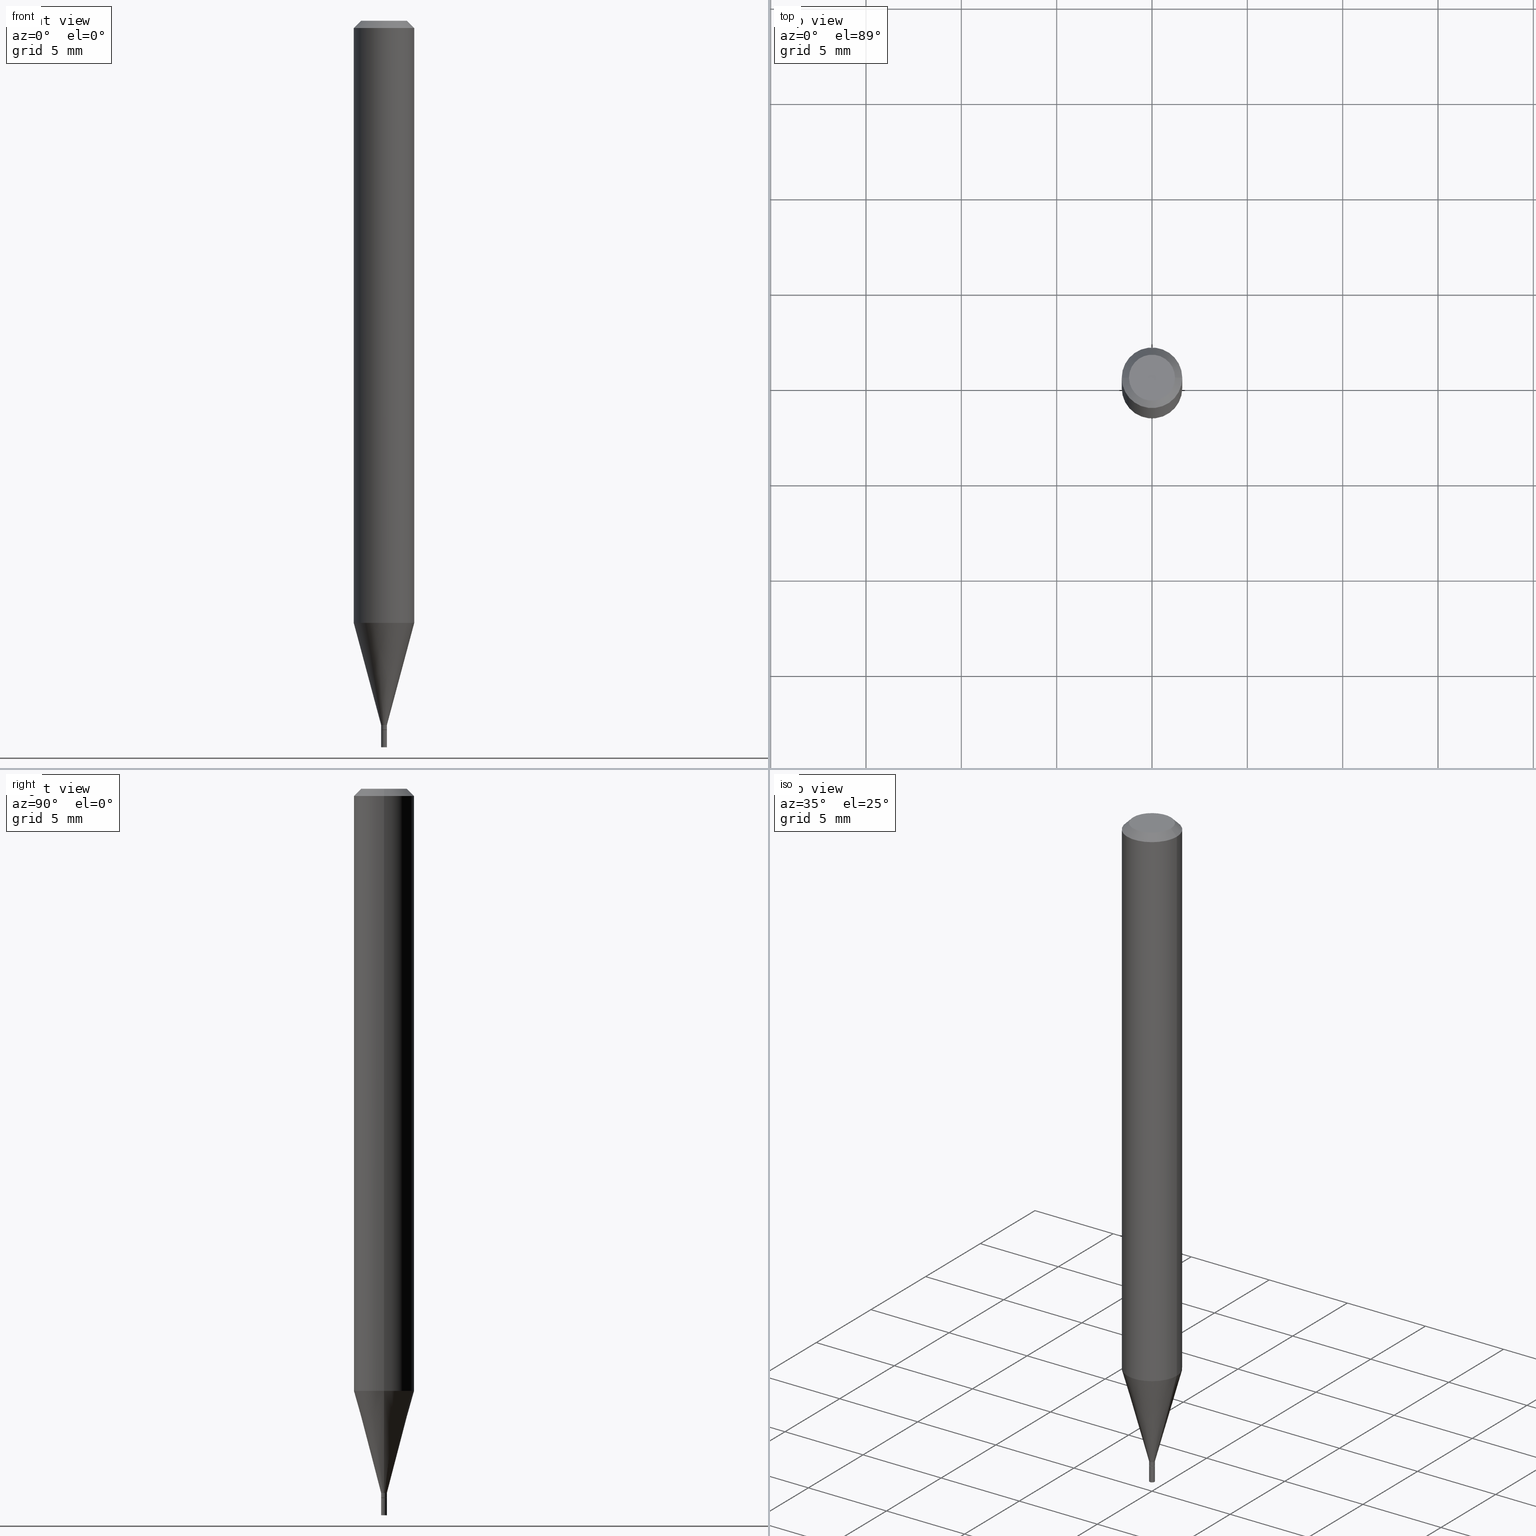
[diagram: canonical four-view strip — front | top / right | iso, engineering-drawing reading convention]
A machine part, canonical four-view strip (front | top / right | iso — engineering-drawing reading convention). The complete STEP part file that produces these views, byte-faithful:
ISO-10303-21;
HEADER;
FILE_DESCRIPTION (( 'STEP AP203' ),
    '1' );
FILE_NAME ('01163.STEP',
    '2024-03-19T23:32:27',
    ( '' ),
    ( '' ),
    'SwSTEP 2.0',
    'SolidWorks 2023',
    '' );
FILE_SCHEMA (( 'CONFIG_CONTROL_DESIGN' ));
ENDSEC;

DATA;
#1 = DIRECTION ( 'NONE',  ( -2.445468806185136597E-29, 3.491481338843145583E-15, 1.000000000000000000 ) ) ;
#2 = DIRECTION ( 'NONE',  ( -0.7071067811865642261, 7.493145998870414114E-15, 0.7071067811865309194 ) ) ;
#3 = COORDINATED_UNIVERSAL_TIME_OFFSET ( 5, 0, .BEHIND. ) ;
#4 = DIRECTION ( 'NONE',  ( -2.445468806185136597E-29, 3.491481338843145583E-15, 1.000000000000000000 ) ) ;
#5 = AXIS2_PLACEMENT_3D ( 'NONE', #80, #295, #219 ) ;
#6 = ADVANCED_FACE ( 'NONE', ( #401 ), #445, .T. ) ;
#7 = AXIS2_PLACEMENT_3D ( 'NONE', #51, #307, #187 ) ;
#8 = ORIENTED_EDGE ( 'NONE', *, *, #368, .T. ) ;
#9 = APPROVAL_DATE_TIME ( #48, #56 ) ;
#10 = FACE_OUTER_BOUND ( 'NONE', #165, .T. ) ;
#11 = ORIENTED_EDGE ( 'NONE', *, *, #319, .T. ) ;
#12 = DIRECTION ( 'NONE',  ( -2.445468806185136597E-29, 3.491481338843145583E-15, 1.000000000000000000 ) ) ;
#13 = AXIS2_PLACEMENT_3D ( 'NONE', #462, #466, #136 ) ;
#14 = CARTESIAN_POINT ( 'NONE',  ( 0.005499999999999999681, -5.149934974793639843E-15, -1.463999999999999968 ) ) ;
#15 = CARTESIAN_POINT ( 'NONE',  ( -0.005999999999999919460, -4.465144582235785416E-15, -1.454000000000000181 ) ) ;
#16 = LINE ( 'NONE', #303, #297 ) ;
#17 = CARTESIAN_POINT ( 'NONE',  ( 3.578943597851947764E-29, -5.109782939396944472E-15, -1.463500000000000023 ) ) ;
#18 = CARTESIAN_POINT ( 'NONE',  ( -0.005999999999999921195, 4.263256414560545121E-17, -2.951361054152904089E-31 ) ) ;
#19 = ORIENTED_EDGE ( 'NONE', *, *, #319, .F. ) ;
#20 = ADVANCED_FACE ( 'NONE', ( #192 ), #265, .F. ) ;
#21 = AXIS2_PLACEMENT_3D ( 'NONE', #30, #138, #393 ) ;
#22 = APPROVAL_ROLE ( '' ) ;
#23 = APPROVAL_PERSON_ORGANIZATION ( #421, #279, #22 ) ;
#24 = DIRECTION ( 'NONE',  ( 1.000000000000000000, -6.982962677686267499E-15, 4.852736867747366768E-29 ) ) ;
#25 = ORIENTED_EDGE ( 'NONE', *, *, #70, .T. ) ;
#26 = EDGE_LOOP ( 'NONE', ( #374, #11, #81, #237 ) ) ;
#27 = ADVANCED_FACE ( 'NONE', ( #372 ), #163, .T. ) ;
#28 = AXIS2_PLACEMENT_3D ( 'NONE', #141, #172, #32 ) ;
#29 = CC_DESIGN_APPROVAL ( #56, ( #137 ) ) ;
#30 = CARTESIAN_POINT ( 'NONE',  ( 3.578943597851947764E-29, -5.109782939396944472E-15, -1.463500000000000023 ) ) ;
#31 = CYLINDRICAL_SURFACE ( 'NONE', #28, 0.005999999999999921195 ) ;
#32 = DIRECTION ( 'NONE',  ( 1.000000000000000000, -6.982962677686265922E-15, 4.876176775795935793E-29 ) ) ;
#33 = PRODUCT_RELATED_PRODUCT_CATEGORY ( 'detail', '', ( #351 ) ) ;
#34 = CIRCLE ( 'NONE', #252, 0.006000000000000000125 ) ;
#35 = AXIS2_PLACEMENT_3D ( 'NONE', #253, #397, #76 ) ;
#36 = AXIS2_PLACEMENT_3D ( 'NONE', #369, #259, #43 ) ;
#37 = CYLINDRICAL_SURFACE ( 'NONE', #13, 0.006000000000000000125 ) ;
#38 = DIRECTION ( 'NONE',  ( -2.445468806185136597E-29, 3.491481338843145583E-15, 1.000000000000000000 ) ) ;
#39 = ADVANCED_FACE ( 'NONE', ( #145 ), #110, .T. ) ;
#40 = VERTEX_POINT ( 'NONE', #215 ) ;
#41 = AXIS2_PLACEMENT_3D ( 'NONE', #209, #72, #356 ) ;
#42 = CC_DESIGN_APPROVAL ( #166, ( #300 ) ) ;
#43 = DIRECTION ( 'NONE',  ( 1.000000000000000000, -6.982962677686270655E-15, 0.000000000000000000 ) ) ;
#44 = DIRECTION ( 'NONE',  ( -2.438088387897960049E-29, 3.491481338843145188E-15, 1.000000000000000000 ) ) ;
#45 = EDGE_CURVE ( 'NONE', #456, #132, #464, .T. ) ;
#46 = DIRECTION ( 'NONE',  ( -2.445468806185136597E-29, 3.491481338843145583E-15, 1.000000000000000000 ) ) ;
#47 = EDGE_LOOP ( 'NONE', ( #448, #457 ) ) ;
#48 = DATE_AND_TIME ( #329, #390 ) ;
#49 = ORIENTED_EDGE ( 'NONE', *, *, #349, .F. ) ;
#50 = VECTOR ( 'NONE', #361, 39.37007874015748143 ) ;
#51 = CARTESIAN_POINT ( 'NONE',  ( 0.000000000000000000, 0.000000000000000000, 0.000000000000000000 ) ) ;
#52 = LINE ( 'NONE', #94, #135 ) ;
#53 = ORIENTED_EDGE ( 'NONE', *, *, #306, .F. ) ;
#54 = DIRECTION ( 'NONE',  ( -2.445468806185136597E-29, 3.491481338843145583E-15, 1.000000000000000000 ) ) ;
#55 = CARTESIAN_POINT ( 'NONE',  ( 1.873992581615772204E-44, -2.675564747051046294E-30, -7.663122002930588880E-16 ) ) ;
#56 = APPROVAL ( #232, 'UNSPECIFIED' ) ;
#57 = ORIENTED_EDGE ( 'NONE', *, *, #285, .F. ) ;
#58 = CARTESIAN_POINT ( 'NONE',  ( 3.668203209277705088E-31, -5.237222008264718399E-17, -0.01499999999999999944 ) ) ;
#59 = ORIENTED_EDGE ( 'NONE', *, *, #426, .F. ) ;
#60 = CIRCLE ( 'NONE', #335, 0.006000000000000000125 ) ;
#61 = CALENDAR_DATE ( 2024, 19, 3 ) ;
#62 = APPROVAL_PERSON_ORGANIZATION ( #69, #166, #434 ) ;
#63 = ORIENTED_EDGE ( 'NONE', *, *, #124, .F. ) ;
#64 = PRODUCT_DEFINITION_SHAPE ( 'NONE', 'NONE',  #137 ) ;
#65 = ORIENTED_EDGE ( 'NONE', *, *, #158, .F. ) ;
#66 = PERSON_AND_ORGANIZATION_ROLE ( 'design_supplier' ) ;
#67 = AXIS2_PLACEMENT_3D ( 'NONE', #322, #171, #210 ) ;
#68 = DIRECTION ( 'NONE',  ( 1.000000000000000000, -6.982962677686266711E-15, 4.876176775795935793E-29 ) ) ;
#69 = PERSON_AND_ORGANIZATION ( #263, #117 ) ;
#70 = EDGE_CURVE ( 'NONE', #262, #456, #218, .T. ) ;
#71 = PLANE ( 'NONE',  #41 ) ;
#72 = DIRECTION ( 'NONE',  ( 2.438088387897960049E-29, -3.491481338843145188E-15, -1.000000000000000000 ) ) ;
#73 = VECTOR ( 'NONE', #130, 39.37007874015748143 ) ;
#74 = CYLINDRICAL_SURFACE ( 'NONE', #140, 0.06250000000000000000 ) ;
#75 = EDGE_CURVE ( 'NONE', #224, #132, #198, .T. ) ;
#76 = DIRECTION ( 'NONE',  ( 1.000000000000000000, -6.982962677686266711E-15, 4.876176775795935793E-29 ) ) ;
#77 = CARTESIAN_POINT ( 'NONE',  ( 3.668203209277704895E-29, -5.237222008264718177E-15, -1.500000000000000222 ) ) ;
#78 = EDGE_LOOP ( 'NONE', ( #420, #90, #101, #63 ) ) ;
#79 = DIRECTION ( 'NONE',  ( 1.000000000000000000, -6.982962677686265133E-15, 0.000000000000000000 ) ) ;
#80 = CARTESIAN_POINT ( 'NONE',  ( 0.000000000000000000, 0.000000000000000000, 0.000000000000000000 ) ) ;
#81 = ORIENTED_EDGE ( 'NONE', *, *, #349, .T. ) ;
#82 = CIRCLE ( 'NONE', #396, 0.06250000000000000000 ) ;
#83 = DIRECTION ( 'NONE',  ( 1.000000000000000000, -6.982962677686332186E-15, 0.000000000000000000 ) ) ;
#84 = ORIENTED_EDGE ( 'NONE', *, *, #45, .F. ) ;
#85 = AXIS2_PLACEMENT_3D ( 'NONE', #159, #332, #365 ) ;
#86 = MECHANICAL_CONTEXT ( 'NONE', #367, 'mechanical' ) ;
#87 = ORIENTED_EDGE ( 'NONE', *, *, #426, .T. ) ;
#88 = APPLICATION_PROTOCOL_DEFINITION ( 'international standard', 'config_control_design', 1994, #408 ) ;
#89 = DIRECTION ( 'NONE',  ( -2.445468806185136597E-29, 3.491481338843145583E-15, 1.000000000000000000 ) ) ;
#90 = ORIENTED_EDGE ( 'NONE', *, *, #285, .T. ) ;
#91 = VECTOR ( 'NONE', #281, 39.37007874015748854 ) ;
#92 = EDGE_CURVE ( 'NONE', #132, #344, #52, .T. ) ;
#93 = PERSON_AND_ORGANIZATION_ROLE ( 'design_owner' ) ;
#94 = CARTESIAN_POINT ( 'NONE',  ( -0.005999999999999919460, -5.033981302532329066E-15, -1.454000000000000181 ) ) ;
#95 = ORIENTED_EDGE ( 'NONE', *, *, #455, .T. ) ;
#96 = DIRECTION ( 'NONE',  ( -2.445468806185136597E-29, 3.491481338843145583E-15, 1.000000000000000000 ) ) ;
#97 = ORIENTED_EDGE ( 'NONE', *, *, #182, .F. ) ;
#98 = ORIENTED_EDGE ( 'NONE', *, *, #179, .F. ) ;
#99 = CIRCLE ( 'NONE', #438, 0.04749999999999999362 ) ;
#100 =( GEOMETRIC_REPRESENTATION_CONTEXT ( 3 ) GLOBAL_UNCERTAINTY_ASSIGNED_CONTEXT ( ( #366 ) ) GLOBAL_UNIT_ASSIGNED_CONTEXT ( ( #376, #269, #121 ) ) REPRESENTATION_CONTEXT ( 'NONE', 'WORKASPACE' ) );
#101 = ORIENTED_EDGE ( 'NONE', *, *, #260, .F. ) ;
#102 = EDGE_CURVE ( 'NONE', #294, #240, #34, .T. ) ;
#103 = DIRECTION ( 'NONE',  ( -2.445468806185136877E-29, 3.491481338843145188E-15, 1.000000000000000000 ) ) ;
#104 = CARTESIAN_POINT ( 'NONE',  ( 3.555711644193189020E-29, -5.076613866677933538E-15, -1.454000000000000181 ) ) ;
#105 = VECTOR ( 'NONE', #270, 39.37007874015748143 ) ;
#106 = EDGE_CURVE ( 'NONE', #256, #134, #395, .T. ) ;
#107 = DIRECTION ( 'NONE',  ( 2.445468806185136597E-29, -3.491481338843145583E-15, -1.000000000000000000 ) ) ;
#108 = SHAPE_DEFINITION_REPRESENTATION ( #64, #357 ) ;
#109 = CIRCLE ( 'NONE', #358, 0.006000000000000000125 ) ;
#110 = CYLINDRICAL_SURFACE ( 'NONE', #35, 0.06250000000000000000 ) ;
#111 = CARTESIAN_POINT ( 'NONE',  ( 3.555711644193189020E-29, -5.076613866677933538E-15, -1.454000000000000181 ) ) ;
#112 = CARTESIAN_POINT ( 'NONE',  ( 0.006000000000000000125, -5.279119784330836629E-15, -1.500000000000000222 ) ) ;
#113 = ORIENTED_EDGE ( 'NONE', *, *, #92, .F. ) ;
#114 = DIRECTION ( 'NONE',  ( 1.000000000000000000, -6.982962677686245411E-15, 0.000000000000000000 ) ) ;
#115 = LINE ( 'NONE', #342, #337 ) ;
#116 = CC_DESIGN_DATE_AND_TIME_ASSIGNMENT ( #142, #287, ( #300 ) ) ;
#117 = ORGANIZATION ( 'UNSPECIFIED', 'UNSPECIFIED', '' ) ;
#118 = APPLICATION_PROTOCOL_DEFINITION ( 'international standard', 'config_control_design', 1994, #367 ) ;
#119 = ORIENTED_EDGE ( 'NONE', *, *, #182, .T. ) ;
#120 = CARTESIAN_POINT ( 'NONE',  ( 0.006000000000000000125, -5.153426456132483639E-15, -1.463999999999999968 ) ) ;
#121 =( NAMED_UNIT ( * ) SI_UNIT ( $, .STERADIAN. ) SOLID_ANGLE_UNIT ( ) );
#122 = LINE ( 'NONE', #308, #73 ) ;
#123 = EDGE_LOOP ( 'NONE', ( #95, #146, #84, #311 ) ) ;
#124 = EDGE_CURVE ( 'NONE', #294, #386, #338, .T. ) ;
#125 = DIRECTION ( 'NONE',  ( -2.445468806185136597E-29, 3.491481338843145583E-15, 1.000000000000000000 ) ) ;
#126 = EDGE_LOOP ( 'NONE', ( #234, #87, #309, #258 ) ) ;
#127 = VECTOR ( 'NONE', #103, 39.37007874015748143 ) ;
#128 = LOCAL_TIME ( 19, 32, 27.00000000000000000, #436 ) ;
#129 = APPROVAL_DATE_TIME ( #245, #279 ) ;
#130 = DIRECTION ( 'NONE',  ( -2.445468806185136877E-29, 3.491481338843145188E-15, 1.000000000000000000 ) ) ;
#131 = ORIENTED_EDGE ( 'NONE', *, *, #158, .T. ) ;
#132 = VERTEX_POINT ( 'NONE', #15 ) ;
#133 = EDGE_CURVE ( 'NONE', #398, #40, #122, .T. ) ;
#134 = VERTEX_POINT ( 'NONE', #157 ) ;
#135 = VECTOR ( 'NONE', #200, 39.37007874015748854 ) ;
#136 = DIRECTION ( 'NONE',  ( 1.000000000000000000, -6.982962677686266711E-15, 4.876176775795935232E-29 ) ) ;
#137 = PRODUCT_DEFINITION ( 'UNKNOWN', '', #154, #203 ) ;
#138 = DIRECTION ( 'NONE',  ( -2.445468806185136597E-29, 3.491481338843145583E-15, 1.000000000000000000 ) ) ;
#139 = AXIS2_PLACEMENT_3D ( 'NONE', #222, #410, #226 ) ;
#140 = AXIS2_PLACEMENT_3D ( 'NONE', #465, #318, #68 ) ;
#141 = CARTESIAN_POINT ( 'NONE',  ( 0.000000000000000000, 0.000000000000000000, 0.000000000000000000 ) ) ;
#142 = DATE_AND_TIME ( #321, #169 ) ;
#143 = EDGE_CURVE ( 'NONE', #256, #40, #16, .T. ) ;
#144 = CARTESIAN_POINT ( 'NONE',  ( 0.005999999999999919460, -5.118511642744051201E-15, -1.454000000000000181 ) ) ;
#145 = FACE_OUTER_BOUND ( 'NONE', #126, .T. ) ;
#146 = ORIENTED_EDGE ( 'NONE', *, *, #75, .T. ) ;
#147 = EDGE_LOOP ( 'NONE', ( #8, #201, #272, #49 ) ) ;
#148 = ADVANCED_FACE ( 'NONE', ( #275 ), #304, .F. ) ;
#149 = PERSON_AND_ORGANIZATION_ROLE ( 'creator' ) ;
#150 = CYLINDRICAL_SURFACE ( 'NONE', #5, 0.006000000000000000125 ) ;
#151 = ORIENTED_EDGE ( 'NONE', *, *, #92, .T. ) ;
#152 = CYLINDRICAL_SURFACE ( 'NONE', #85, 0.005999999999999921195 ) ;
#153 = DIRECTION ( 'NONE',  ( 2.445468806185136597E-29, -3.491481338843145583E-15, -1.000000000000000000 ) ) ;
#154 = PRODUCT_DEFINITION_FORMATION_WITH_SPECIFIED_SOURCE ( 'ANY', '', #351, .NOT_KNOWN. ) ;
#155 = DIRECTION ( 'NONE',  ( 1.000000000000000000, -6.982962677686245411E-15, 0.000000000000000000 ) ) ;
#156 = COORDINATED_UNIVERSAL_TIME_OFFSET ( 5, 0, .BEHIND. ) ;
#157 = CARTESIAN_POINT ( 'NONE',  ( -0.04749999999999999362, 3.578768372314197194E-16, -7.663122002930613532E-16 ) ) ;
#158 = EDGE_CURVE ( 'NONE', #134, #451, #447, .T. ) ;
#159 = CARTESIAN_POINT ( 'NONE',  ( 0.000000000000000000, 0.000000000000000000, 0.000000000000000000 ) ) ;
#160 = CARTESIAN_POINT ( 'NONE',  ( 0.006000000000000000125, -4.189777606611760174E-17, 2.925706065477561230E-31 ) ) ;
#161 = DIRECTION ( 'NONE',  ( -2.445468806185136877E-29, 3.491481338843145188E-15, 1.000000000000000000 ) ) ;
#162 = EDGE_LOOP ( 'NONE', ( #277, #53 ) ) ;
#163 = CONICAL_SURFACE ( 'NONE', #444, 0.005999999999999919460, 0.2617993877991499629 ) ;
#164 = LOCAL_TIME ( 19, 32, 27.00000000000000000, #293 ) ;
#165 = EDGE_LOOP ( 'NONE', ( #57, #330, #167, #97 ) ) ;
#166 = APPROVAL ( #173, 'UNSPECIFIED' ) ;
#167 = ORIENTED_EDGE ( 'NONE', *, *, #124, .T. ) ;
#168 = ORIENTED_EDGE ( 'NONE', *, *, #360, .F. ) ;
#169 = LOCAL_TIME ( 19, 32, 27.00000000000000000, #3 ) ;
#170 = EDGE_CURVE ( 'NONE', #134, #256, #99, .T. ) ;
#171 = DIRECTION ( 'NONE',  ( -2.445468806185136597E-29, 3.491481338843145583E-15, 1.000000000000000000 ) ) ;
#172 = DIRECTION ( 'NONE',  ( -2.445468806185136597E-29, 3.491481338843145583E-15, 1.000000000000000000 ) ) ;
#173 = APPROVAL_STATUS ( 'not_yet_approved' ) ;
#174 = CARTESIAN_POINT ( 'NONE',  ( 3.668203209277705088E-31, -5.237222008264718399E-17, -0.01499999999999999944 ) ) ;
#175 = AXIS2_PLACEMENT_3D ( 'NONE', #324, #12, #155 ) ;
#176 = CLOSED_SHELL ( 'NONE', ( #266, #20, #355, #186 ) ) ;
#177 = FACE_OUTER_BOUND ( 'NONE', #305, .T. ) ;
#178 = CALENDAR_DATE ( 2024, 19, 3 ) ;
#179 = EDGE_CURVE ( 'NONE', #451, #40, #320, .T. ) ;
#180 = LINE ( 'NONE', #443, #50 ) ;
#181 = CARTESIAN_POINT ( 'NONE',  ( 3.668203209277705088E-31, -5.237222008264718399E-17, -0.01499999999999999944 ) ) ;
#182 = EDGE_CURVE ( 'NONE', #326, #386, #109, .T. ) ;
#183 = ORIENTED_EDGE ( 'NONE', *, *, #236, .T. ) ;
#184 = VECTOR ( 'NONE', #2, 39.37007874015748143 ) ;
#185 = AXIS2_PLACEMENT_3D ( 'NONE', #17, #412, #264 ) ;
#186 = ADVANCED_FACE ( 'NONE', ( #177 ), #71, .F. ) ;
#187 = DIRECTION ( 'NONE',  ( 1.000000000000000000, 0.000000000000000000, 0.000000000000000000 ) ) ;
#188 = EDGE_LOOP ( 'NONE', ( #348, #183, #25, #168 ) ) ;
#189 = DIRECTION ( 'NONE',  ( -2.445468806185136597E-29, 3.491481338843145583E-15, 1.000000000000000000 ) ) ;
#190 = FACE_OUTER_BOUND ( 'NONE', #123, .T. ) ;
#191 = EDGE_LOOP ( 'NONE', ( #370, #403, #131, #276 ) ) ;
#192 = FACE_OUTER_BOUND ( 'NONE', #162, .T. ) ;
#193 = CIRCLE ( 'NONE', #213, 0.006000000000000000125 ) ;
#194 = DIRECTION ( 'NONE',  ( 1.000000000000000000, -6.982962677686270655E-15, 0.000000000000000000 ) ) ;
#195 = CARTESIAN_POINT ( 'NONE',  ( 3.668203209277704895E-29, -5.237222008264718177E-15, -1.500000000000000222 ) ) ;
#196 = ORIENTED_EDGE ( 'NONE', *, *, #360, .T. ) ;
#197 = CARTESIAN_POINT ( 'NONE',  ( -0.06250000000000000000, -1.752295436085913706E-15, -0.01499999999999999944 ) ) ;
#198 = LINE ( 'NONE', #18, #105 ) ;
#199 = EDGE_LOOP ( 'NONE', ( #382, #19 ) ) ;
#200 = DIRECTION ( 'NONE',  ( -0.2588190451025212391, 5.211531920934549464E-15, 0.9659258262890679791 ) ) ;
#201 = ORIENTED_EDGE ( 'NONE', *, *, #389, .T. ) ;
#202 = CC_DESIGN_PERSON_AND_ORGANIZATION_ASSIGNMENT ( #208, #354, ( #300 ) ) ;
#203 = DESIGN_CONTEXT ( 'detailed design', #408, 'design' ) ;
#204 = EDGE_LOOP ( 'NONE', ( #414, #406, #384, #65 ) ) ;
#205 = PERSON_AND_ORGANIZATION_ROLE ( 'creator' ) ;
#206 = CALENDAR_DATE ( 2024, 19, 3 ) ;
#207 = AXIS2_PLACEMENT_3D ( 'NONE', #290, #334, #363 ) ;
#208 = PERSON_AND_ORGANIZATION ( #263, #117 ) ;
#209 = CARTESIAN_POINT ( 'NONE',  ( 4.189777606615339631E-17, 0.005999999999994887895, -1.463999999999999968 ) ) ;
#210 = DIRECTION ( 'NONE',  ( 1.000000000000000000, -6.982962677686245411E-15, 0.000000000000000000 ) ) ;
#211 = FACE_OUTER_BOUND ( 'NONE', #147, .T. ) ;
#212 = ADVANCED_FACE ( 'NONE', ( #211 ), #230, .T. ) ;
#213 = AXIS2_PLACEMENT_3D ( 'NONE', #359, #435, #317 ) ;
#214 = CARTESIAN_POINT ( 'NONE',  ( 0.005999999999999922062, -5.151680715463061346E-15, -1.463500000000000023 ) ) ;
#215 = CARTESIAN_POINT ( 'NONE',  ( 0.06250000000000000000, -4.888073874380388472E-16, -0.01499999999999999944 ) ) ;
#216 = CARTESIAN_POINT ( 'NONE',  ( -0.006000000000000000125, -5.131742780019935633E-15, -1.463999999999999968 ) ) ;
#217 = ADVANCED_FACE ( 'NONE', ( #286 ), #74, .T. ) ;
#218 = LINE ( 'NONE', #362, #261 ) ;
#219 = DIRECTION ( 'NONE',  ( 1.000000000000000000, -6.982962677686266711E-15, 4.876176775795935232E-29 ) ) ;
#220 = VERTEX_POINT ( 'NONE', #432 ) ;
#221 = CIRCLE ( 'NONE', #207, 0.005999999999999919460 ) ;
#222 = CARTESIAN_POINT ( 'NONE',  ( 3.584916967085606921E-29, -5.356492647442320375E-15, -1.500000000000000222 ) ) ;
#223 = CARTESIAN_POINT ( 'NONE',  ( -0.06250000000000000000, -3.896307861939242555E-15, -1.243139129372358598 ) ) ;
#224 = VERTEX_POINT ( 'NONE', #282 ) ;
#225 = ADVANCED_FACE ( 'NONE', ( #288 ), #31, .T. ) ;
#226 = DIRECTION ( 'NONE',  ( 1.000000000000000000, -6.982962677686265922E-15, 4.876176775795935793E-29 ) ) ;
#227 = CARTESIAN_POINT ( 'NONE',  ( 3.580166332255040005E-29, -5.111528680066365187E-15, -1.463999999999999968 ) ) ;
#228 =( LENGTH_UNIT ( ) NAMED_UNIT ( * ) SI_UNIT ( $, .METRE. ) );
#229 = DIRECTION ( 'NONE',  ( 1.000000000000000000, -6.982962677686266711E-15, 0.000000000000000000 ) ) ;
#230 = CONICAL_SURFACE ( 'NONE', #67, 0.005499999999999999681, 0.7853981633974718157 ) ;
#231 = ORIENTED_EDGE ( 'NONE', *, *, #446, .F. ) ;
#232 = APPROVAL_STATUS ( 'not_yet_approved' ) ;
#233 = DIRECTION ( 'NONE',  ( 0.7071067811865656694, -7.319954787623317576E-15, -0.7071067811865294761 ) ) ;
#234 = ORIENTED_EDGE ( 'NONE', *, *, #411, .T. ) ;
#235 = DIRECTION ( 'NONE',  ( -1.000000000000000000, 6.982962677686265922E-15, -4.876176775795935793E-29 ) ) ;
#236 = EDGE_CURVE ( 'NONE', #224, #262, #404, .T. ) ;
#237 = ORIENTED_EDGE ( 'NONE', *, *, #236, .F. ) ;
#238 = COORDINATED_UNIVERSAL_TIME_OFFSET ( 5, 0, .BEHIND. ) ;
#239 = AXIS2_PLACEMENT_3D ( 'NONE', #340, #343, #24 ) ;
#240 = VERTEX_POINT ( 'NONE', #353 ) ;
#241 = AXIS2_PLACEMENT_3D ( 'NONE', #111, #4, #79 ) ;
#242 = ORIENTED_EDGE ( 'NONE', *, *, #273, .F. ) ;
#243 = CC_DESIGN_DATE_AND_TIME_ASSIGNMENT ( #310, #458, ( #137 ) ) ;
#244 = FACE_OUTER_BOUND ( 'NONE', #199, .T. ) ;
#245 = DATE_AND_TIME ( #61, #430 ) ;
#246 = CARTESIAN_POINT ( 'NONE',  ( -0.006000000000000000125, 4.263256414560601204E-17, -2.951361054152943501E-31 ) ) ;
#247 = CONICAL_SURFACE ( 'NONE', #424, 0.005999999999999919460, 0.2617993877991499629 ) ;
#248 = CIRCLE ( 'NONE', #185, 0.005999999999999922062 ) ;
#249 = AXIS2_PLACEMENT_3D ( 'NONE', #333, #153, #301 ) ;
#250 = DIRECTION ( 'NONE',  ( -1.000000000000000000, 6.982962677686266711E-15, 0.000000000000000000 ) ) ;
#251 = ADVANCED_FACE ( 'NONE', ( #463 ), #247, .T. ) ;
#252 = AXIS2_PLACEMENT_3D ( 'NONE', #195, #96, #453 ) ;
#253 = CARTESIAN_POINT ( 'NONE',  ( 0.000000000000000000, 0.000000000000000000, 0.000000000000000000 ) ) ;
#254 = ADVANCED_FACE ( 'NONE', ( #283 ), #364, .T. ) ;
#255 = APPROVAL_DATE_TIME ( #328, #166 ) ;
#256 = VERTEX_POINT ( 'NONE', #392 ) ;
#257 = FACE_OUTER_BOUND ( 'NONE', #26, .T. ) ;
#258 = ORIENTED_EDGE ( 'NONE', *, *, #133, .F. ) ;
#259 = DIRECTION ( 'NONE',  ( -2.445468806185136597E-29, 3.491481338843145583E-15, 1.000000000000000000 ) ) ;
#260 = EDGE_CURVE ( 'NONE', #386, #326, #193, .T. ) ;
#261 = VECTOR ( 'NONE', #346, 39.37007874015748143 ) ;
#262 = VERTEX_POINT ( 'NONE', #214 ) ;
#263 = PERSON ( 'UNSPECIFIED', 'UNSPECIFIED', 'UNSPECIFIED', ('UNSPECIFIED'), ('UNSPECIFIED'), ('UNSPECIFIED') ) ;
#264 = DIRECTION ( 'NONE',  ( 1.000000000000000000, -6.982962677686261977E-15, 0.000000000000000000 ) ) ;
#265 = PLANE ( 'NONE',  #139 ) ;
#266 = ADVANCED_FACE ( 'NONE', ( #461 ), #37, .T. ) ;
#267 = CARTESIAN_POINT ( 'NONE',  ( -0.005499999999999999681, -5.072448829599560036E-15, -1.463999999999999968 ) ) ;
#268 = DIRECTION ( 'NONE',  ( -0.7071067811865656694, 2.468850131082446387E-15, -0.7071067811865294761 ) ) ;
#269 =( NAMED_UNIT ( * ) PLANE_ANGLE_UNIT ( ) SI_UNIT ( $, .RADIAN. ) );
#270 = DIRECTION ( 'NONE',  ( -2.445468806185136877E-29, 3.491481338843145188E-15, 1.000000000000000000 ) ) ;
#271 = CIRCLE ( 'NONE', #175, 0.005499999999999999681 ) ;
#272 = ORIENTED_EDGE ( 'NONE', *, *, #455, .F. ) ;
#273 = EDGE_CURVE ( 'NONE', #456, #398, #427, .T. ) ;
#274 = SECURITY_CLASSIFICATION_LEVEL ( 'unclassified' ) ;
#275 = FACE_OUTER_BOUND ( 'NONE', #47, .T. ) ;
#276 = ORIENTED_EDGE ( 'NONE', *, *, #179, .T. ) ;
#277 = ORIENTED_EDGE ( 'NONE', *, *, #102, .F. ) ;
#278 = AXIS2_PLACEMENT_3D ( 'NONE', #174, #107, #250 ) ;
#279 = APPROVAL ( #345, 'UNSPECIFIED' ) ;
#280 = ORIENTED_EDGE ( 'NONE', *, *, #446, .T. ) ;
#281 = DIRECTION ( 'NONE',  ( 0.2588190451025212391, 1.565188264969622362E-15, 0.9659258262890679791 ) ) ;
#282 = CARTESIAN_POINT ( 'NONE',  ( -0.005999999999999922062, -5.067150375251339212E-15, -1.463500000000000023 ) ) ;
#283 = FACE_OUTER_BOUND ( 'NONE', #204, .T. ) ;
#284 = AXIS2_PLACEMENT_3D ( 'NONE', #181, #54, #416 ) ;
#285 = EDGE_CURVE ( 'NONE', #240, #326, #425, .T. ) ;
#286 = FACE_OUTER_BOUND ( 'NONE', #350, .T. ) ;
#287 = DATE_TIME_ROLE ( 'classification_date' ) ;
#288 = FACE_OUTER_BOUND ( 'NONE', #188, .T. ) ;
#289 = EDGE_LOOP ( 'NONE', ( #113, #196, #312, #231 ) ) ;
#290 = CARTESIAN_POINT ( 'NONE',  ( 3.555711644193189020E-29, -5.076613866677933538E-15, -1.454000000000000181 ) ) ;
#291 = DIRECTION ( 'NONE',  ( 1.000000000000000000, -6.982962677686265922E-15, 4.876176775795935793E-29 ) ) ;
#292 = ADVANCED_FACE ( 'NONE', ( #244 ), #387, .F. ) ;
#293 = COORDINATED_UNIVERSAL_TIME_OFFSET ( 5, 0, .BEHIND. ) ;
#294 = VERTEX_POINT ( 'NONE', #112 ) ;
#295 = DIRECTION ( 'NONE',  ( -2.445468806185136597E-29, 3.491481338843145583E-15, 1.000000000000000000 ) ) ;
#296 = ORIENTED_EDGE ( 'NONE', *, *, #411, .F. ) ;
#297 = VECTOR ( 'NONE', #233, 39.37007874015748143 ) ;
#298 = CIRCLE ( 'NONE', #36, 0.06250000000000000000 ) ;
#299 = CC_DESIGN_PERSON_AND_ORGANIZATION_ASSIGNMENT ( #409, #93, ( #351 ) ) ;
#300 = SECURITY_CLASSIFICATION ( '', '', #274 ) ;
#301 = DIRECTION ( 'NONE',  ( -1.000000000000000000, 6.982962677686266711E-15, 0.000000000000000000 ) ) ;
#302 = CARTESIAN_POINT ( 'NONE',  ( 3.040057962628251805E-29, -4.340397071789305171E-15, -1.243139129372358598 ) ) ;
#303 = CARTESIAN_POINT ( 'NONE',  ( 0.06250000000000000000, -4.811533449433679005E-16, -0.01499999999999999944 ) ) ;
#304 = PLANE ( 'NONE',  #375 ) ;
#305 = EDGE_LOOP ( 'NONE', ( #379, #119 ) ) ;
#306 = EDGE_CURVE ( 'NONE', #240, #294, #60, .T. ) ;
#307 = DIRECTION ( 'NONE',  ( 0.000000000000000000, 0.000000000000000000, 1.000000000000000000 ) ) ;
#308 = CARTESIAN_POINT ( 'NONE',  ( 0.06250000000000000000, -4.364351673553916694E-16, 3.047610484872459871E-30 ) ) ;
#309 = ORIENTED_EDGE ( 'NONE', *, *, #400, .F. ) ;
#310 = DATE_AND_TIME ( #206, #164 ) ;
#311 = ORIENTED_EDGE ( 'NONE', *, *, #70, .F. ) ;
#312 = ORIENTED_EDGE ( 'NONE', *, *, #273, .T. ) ;
#313 = AXIS2_PLACEMENT_3D ( 'NONE', #331, #399, #402 ) ;
#314 = CC_DESIGN_APPROVAL ( #279, ( #154 ) ) ;
#315 = DIRECTION ( 'NONE',  ( 1.000000000000000000, -6.982962677686265133E-15, 0.000000000000000000 ) ) ;
#316 = PERSON_AND_ORGANIZATION ( #263, #117 ) ;
#317 = DIRECTION ( 'NONE',  ( 1.000000000000000000, -6.982962677686332186E-15, 0.000000000000000000 ) ) ;
#318 = DIRECTION ( 'NONE',  ( -2.445468806185136597E-29, 3.491481338843145583E-15, 1.000000000000000000 ) ) ;
#319 = EDGE_CURVE ( 'NONE', #220, #418, #385, .T. ) ;
#320 = CIRCLE ( 'NONE', #347, 0.06250000000000000000 ) ;
#321 = CALENDAR_DATE ( 2024, 19, 3 ) ;
#322 = CARTESIAN_POINT ( 'NONE',  ( 3.580166332255040005E-29, -5.111528680066365187E-15, -1.463999999999999968 ) ) ;
#323 = CC_DESIGN_PERSON_AND_ORGANIZATION_ASSIGNMENT ( #380, #149, ( #137 ) ) ;
#324 = CARTESIAN_POINT ( 'NONE',  ( 3.580166332255040005E-29, -5.111528680066365187E-15, -1.463999999999999968 ) ) ;
#325 = DIRECTION ( 'NONE',  ( 1.000000000000000000, -6.982962677686265133E-15, 0.000000000000000000 ) ) ;
#326 = VERTEX_POINT ( 'NONE', #216 ) ;
#327 = VECTOR ( 'NONE', #161, 39.37007874015748143 ) ;
#328 = DATE_AND_TIME ( #178, #128 ) ;
#329 = CALENDAR_DATE ( 2024, 19, 3 ) ;
#330 = ORIENTED_EDGE ( 'NONE', *, *, #306, .T. ) ;
#331 = CARTESIAN_POINT ( 'NONE',  ( 3.580166332255040005E-29, -5.111528680066365187E-15, -1.463999999999999968 ) ) ;
#332 = DIRECTION ( 'NONE',  ( -2.445468806185136597E-29, 3.491481338843145583E-15, 1.000000000000000000 ) ) ;
#333 = CARTESIAN_POINT ( 'NONE',  ( 3.668203209277705088E-31, -5.237222008264718399E-17, -0.01499999999999999944 ) ) ;
#334 = DIRECTION ( 'NONE',  ( -2.445468806185136597E-29, 3.491481338843145583E-15, 1.000000000000000000 ) ) ;
#335 = AXIS2_PLACEMENT_3D ( 'NONE', #77, #440, #83 ) ;
#336 = PERSON_AND_ORGANIZATION ( #263, #117 ) ;
#337 = VECTOR ( 'NONE', #339, 39.37007874015748143 ) ;
#338 = LINE ( 'NONE', #160, #327 ) ;
#339 = DIRECTION ( 'NONE',  ( -2.445468806185136877E-29, 3.491481338843145188E-15, 1.000000000000000000 ) ) ;
#340 = CARTESIAN_POINT ( 'NONE',  ( 1.873992581615772204E-44, -2.675564747051046294E-30, -7.663122002930588880E-16 ) ) ;
#341 = ADVANCED_FACE ( 'NONE', ( #257 ), #415, .T. ) ;
#342 = CARTESIAN_POINT ( 'NONE',  ( -0.06250000000000000000, 4.440892098500626162E-16, -3.074334431409316114E-30 ) ) ;
#343 = DIRECTION ( 'NONE',  ( -2.445468806185136597E-29, 3.491481338843145583E-15, 1.000000000000000000 ) ) ;
#344 = VERTEX_POINT ( 'NONE', #223 ) ;
#345 = APPROVAL_STATUS ( 'not_yet_approved' ) ;
#346 = DIRECTION ( 'NONE',  ( -2.445468806185136877E-29, 3.491481338843145188E-15, 1.000000000000000000 ) ) ;
#347 = AXIS2_PLACEMENT_3D ( 'NONE', #58, #89, #229 ) ;
#348 = ORIENTED_EDGE ( 'NONE', *, *, #75, .F. ) ;
#349 = EDGE_CURVE ( 'NONE', #418, #262, #180, .T. ) ;
#350 = EDGE_LOOP ( 'NONE', ( #59, #280, #454, #98 ) ) ;
#351 = PRODUCT ( '01163', '01163', '', ( #86 ) ) ;
#352 = AXIS2_PLACEMENT_3D ( 'NONE', #391, #44, #291 ) ;
#353 = CARTESIAN_POINT ( 'NONE',  ( -0.006000000000000000125, -5.131742780019935633E-15, -1.500000000000000222 ) ) ;
#354 = PERSON_AND_ORGANIZATION_ROLE ( 'classification_officer' ) ;
#355 = ADVANCED_FACE ( 'NONE', ( #10 ), #150, .T. ) ;
#356 = DIRECTION ( 'NONE',  ( -1.000000000000000000, 6.982962677686265922E-15, -4.876176775795935793E-29 ) ) ;
#357 = ADVANCED_BREP_SHAPE_REPRESENTATION ( '01163', ( #431, #433, #7 ), #100 ) ;
#358 = AXIS2_PLACEMENT_3D ( 'NONE', #450, #125, #378 ) ;
#359 = CARTESIAN_POINT ( 'NONE',  ( 3.580166332255040005E-29, -5.111528680066365187E-15, -1.463999999999999968 ) ) ;
#360 = EDGE_CURVE ( 'NONE', #132, #456, #221, .T. ) ;
#361 = DIRECTION ( 'NONE',  ( 0.7071067811865642261, -2.468850131082431399E-15, 0.7071067811865309194 ) ) ;
#362 = CARTESIAN_POINT ( 'NONE',  ( 0.005999999999999921195, -4.189777606611704707E-17, 2.925706065477523133E-31 ) ) ;
#363 = DIRECTION ( 'NONE',  ( 1.000000000000000000, -6.982962677686265133E-15, 0.000000000000000000 ) ) ;
#364 = CONICAL_SURFACE ( 'NONE', #278, 0.06250000000000000000, 0.7853981633974739252 ) ;
#365 = DIRECTION ( 'NONE',  ( 1.000000000000000000, -6.982962677686265922E-15, 4.876176775795935793E-29 ) ) ;
#366 = UNCERTAINTY_MEASURE_WITH_UNIT (LENGTH_MEASURE( 1.000000000000000082E-05 ), #376, 'distance_accuracy_value', 'NONE');
#367 = APPLICATION_CONTEXT ( 'configuration controlled 3d designs of mechanical parts and assemblies' ) ;
#368 = EDGE_CURVE ( 'NONE', #418, #220, #271, .T. ) ;
#369 = CARTESIAN_POINT ( 'NONE',  ( 3.040057962628251805E-29, -4.340397071789305171E-15, -1.243139129372358598 ) ) ;
#370 = ORIENTED_EDGE ( 'NONE', *, *, #143, .F. ) ;
#371 = APPROVAL_ROLE ( '' ) ;
#372 = FACE_OUTER_BOUND ( 'NONE', #289, .T. ) ;
#373 = LINE ( 'NONE', #267, #184 ) ;
#374 = ORIENTED_EDGE ( 'NONE', *, *, #389, .F. ) ;
#375 = AXIS2_PLACEMENT_3D ( 'NONE', #417, #419, #235 ) ;
#376 =( CONVERSION_BASED_UNIT ( 'INCH', #449 ) LENGTH_UNIT ( ) NAMED_UNIT ( #407 ) );
#377 = APPROVAL_PERSON_ORGANIZATION ( #336, #56, #371 ) ;
#378 = DIRECTION ( 'NONE',  ( 1.000000000000000000, -6.982962677686332186E-15, 0.000000000000000000 ) ) ;
#379 = ORIENTED_EDGE ( 'NONE', *, *, #260, .T. ) ;
#380 = PERSON_AND_ORGANIZATION ( #263, #117 ) ;
#381 = CARTESIAN_POINT ( 'NONE',  ( -0.06250000000000000000, 3.840629472727444916E-16, -0.01499999999999999944 ) ) ;
#382 = ORIENTED_EDGE ( 'NONE', *, *, #368, .F. ) ;
#383 = DIRECTION ( 'NONE',  ( -2.445468806185136597E-29, 3.491481338843145583E-15, 1.000000000000000000 ) ) ;
#384 = ORIENTED_EDGE ( 'NONE', *, *, #400, .T. ) ;
#385 = CIRCLE ( 'NONE', #459, 0.005499999999999999681 ) ;
#386 = VERTEX_POINT ( 'NONE', #120 ) ;
#387 = PLANE ( 'NONE',  #352 ) ;
#388 = PERSON_AND_ORGANIZATION ( #263, #117 ) ;
#389 = EDGE_CURVE ( 'NONE', #220, #224, #373, .T. ) ;
#390 = LOCAL_TIME ( 19, 32, 27.00000000000000000, #156 ) ;
#391 = CARTESIAN_POINT ( 'NONE',  ( 3.580166332255040005E-29, -5.111528680066365187E-15, -1.463999999999999968 ) ) ;
#392 = CARTESIAN_POINT ( 'NONE',  ( 0.04749999999999999362, -4.035134999187591935E-16, -7.663122002930563242E-16 ) ) ;
#393 = DIRECTION ( 'NONE',  ( 1.000000000000000000, -6.982962677686261977E-15, 0.000000000000000000 ) ) ;
#394 = CARTESIAN_POINT ( 'NONE',  ( 0.06250000000000000000, -4.776832239144696052E-15, -1.243139129372358598 ) ) ;
#395 = CIRCLE ( 'NONE', #239, 0.04749999999999999362 ) ;
#396 = AXIS2_PLACEMENT_3D ( 'NONE', #302, #46, #194 ) ;
#397 = DIRECTION ( 'NONE',  ( -2.445468806185136597E-29, 3.491481338843145583E-15, 1.000000000000000000 ) ) ;
#398 = VERTEX_POINT ( 'NONE', #394 ) ;
#399 = DIRECTION ( 'NONE',  ( -2.445468806185136597E-29, 3.491481338843145583E-15, 1.000000000000000000 ) ) ;
#400 = EDGE_CURVE ( 'NONE', #40, #451, #452, .T. ) ;
#401 = FACE_OUTER_BOUND ( 'NONE', #191, .T. ) ;
#402 = DIRECTION ( 'NONE',  ( 1.000000000000000000, -6.982962677686245411E-15, 0.000000000000000000 ) ) ;
#403 = ORIENTED_EDGE ( 'NONE', *, *, #170, .F. ) ;
#404 = CIRCLE ( 'NONE', #21, 0.005999999999999922062 ) ;
#405 = CC_DESIGN_SECURITY_CLASSIFICATION ( #300, ( #154 ) ) ;
#406 = ORIENTED_EDGE ( 'NONE', *, *, #143, .T. ) ;
#407 = DIMENSIONAL_EXPONENTS ( 1.000000000000000000, 0.000000000000000000, 0.000000000000000000, 0.000000000000000000, 0.000000000000000000, 0.000000000000000000, 0.000000000000000000 ) ;
#408 = APPLICATION_CONTEXT ( 'configuration controlled 3d designs of mechanical parts and assemblies' ) ;
#409 = PERSON_AND_ORGANIZATION ( #263, #117 ) ;
#410 = DIRECTION ( 'NONE',  ( -2.438088387897960049E-29, 3.491481338843145188E-15, 1.000000000000000000 ) ) ;
#411 = EDGE_CURVE ( 'NONE', #398, #344, #82, .T. ) ;
#412 = DIRECTION ( 'NONE',  ( -2.445468806185136597E-29, 3.491481338843145583E-15, 1.000000000000000000 ) ) ;
#413 = DIRECTION ( 'NONE',  ( 1.000000000000000000, -6.982962677686267499E-15, 4.852736867747366768E-29 ) ) ;
#414 = ORIENTED_EDGE ( 'NONE', *, *, #106, .F. ) ;
#415 = CONICAL_SURFACE ( 'NONE', #313, 0.005499999999999999681, 0.7853981633974718157 ) ;
#416 = DIRECTION ( 'NONE',  ( 1.000000000000000000, -6.982962677686266711E-15, 0.000000000000000000 ) ) ;
#417 = CARTESIAN_POINT ( 'NONE',  ( 3.316907271900976096E-16, 0.04749999999999999362, -5.490014637415788897E-16 ) ) ;
#418 = VERTEX_POINT ( 'NONE', #14 ) ;
#419 = DIRECTION ( 'NONE',  ( 2.438088387897960049E-29, -3.491481338843145188E-15, -1.000000000000000000 ) ) ;
#420 = ORIENTED_EDGE ( 'NONE', *, *, #102, .T. ) ;
#421 = PERSON_AND_ORGANIZATION ( #263, #117 ) ;
#422 = ADVANCED_FACE ( 'NONE', ( #190 ), #152, .T. ) ;
#423 = ORIENTED_EDGE ( 'NONE', *, *, #45, .T. ) ;
#424 = AXIS2_PLACEMENT_3D ( 'NONE', #104, #38, #315 ) ;
#425 = LINE ( 'NONE', #246, #127 ) ;
#426 = EDGE_CURVE ( 'NONE', #344, #451, #115, .T. ) ;
#427 = LINE ( 'NONE', #144, #91 ) ;
#428 = CLOSED_SHELL ( 'NONE', ( #422, #212, #254, #39, #251, #27, #217, #6, #148, #292, #341, #225 ) ) ;
#429 = VECTOR ( 'NONE', #268, 39.37007874015748143 ) ;
#430 = LOCAL_TIME ( 19, 32, 27.00000000000000000, #238 ) ;
#431 = MANIFOLD_SOLID_BREP ( 'Body-Move/Copy2[1]', #176 ) ;
#432 = CARTESIAN_POINT ( 'NONE',  ( -0.005499999999999999681, -5.069799602425448835E-15, -1.463999999999999968 ) ) ;
#433 = MANIFOLD_SOLID_BREP ( 'Body-Move/Copy2[2]', #428 ) ;
#434 = APPROVAL_ROLE ( '' ) ;
#435 = DIRECTION ( 'NONE',  ( -2.445468806185136597E-29, 3.491481338843145583E-15, 1.000000000000000000 ) ) ;
#436 = COORDINATED_UNIVERSAL_TIME_OFFSET ( 5, 0, .BEHIND. ) ;
#437 = CARTESIAN_POINT ( 'NONE',  ( 3.555711644193189020E-29, -5.076613866677933538E-15, -1.454000000000000181 ) ) ;
#438 = AXIS2_PLACEMENT_3D ( 'NONE', #55, #383, #413 ) ;
#439 = EDGE_LOOP ( 'NONE', ( #423, #151, #296, #242 ) ) ;
#440 = DIRECTION ( 'NONE',  ( -2.445468806185136597E-29, 3.491481338843145583E-15, 1.000000000000000000 ) ) ;
#441 = CC_DESIGN_PERSON_AND_ORGANIZATION_ASSIGNMENT ( #388, #66, ( #154 ) ) ;
#442 = CARTESIAN_POINT ( 'NONE',  ( 0.005999999999999919460, -5.118511642744051201E-15, -1.454000000000000181 ) ) ;
#443 = CARTESIAN_POINT ( 'NONE',  ( 0.005499999999999999681, -5.149934974793639843E-15, -1.463999999999999968 ) ) ;
#444 = AXIS2_PLACEMENT_3D ( 'NONE', #437, #1, #325 ) ;
#445 = CONICAL_SURFACE ( 'NONE', #249, 0.06250000000000000000, 0.7853981633974739252 ) ;
#446 = EDGE_CURVE ( 'NONE', #344, #398, #298, .T. ) ;
#447 = LINE ( 'NONE', #381, #429 ) ;
#448 = ORIENTED_EDGE ( 'NONE', *, *, #170, .T. ) ;
#449 = LENGTH_MEASURE_WITH_UNIT ( LENGTH_MEASURE( 0.02539999999999999897 ), #228 );
#450 = CARTESIAN_POINT ( 'NONE',  ( 3.580166332255040005E-29, -5.111528680066365187E-15, -1.463999999999999968 ) ) ;
#451 = VERTEX_POINT ( 'NONE', #197 ) ;
#452 = CIRCLE ( 'NONE', #284, 0.06250000000000000000 ) ;
#453 = DIRECTION ( 'NONE',  ( 1.000000000000000000, -6.982962677686332186E-15, 0.000000000000000000 ) ) ;
#454 = ORIENTED_EDGE ( 'NONE', *, *, #133, .T. ) ;
#455 = EDGE_CURVE ( 'NONE', #262, #224, #248, .T. ) ;
#456 = VERTEX_POINT ( 'NONE', #442 ) ;
#457 = ORIENTED_EDGE ( 'NONE', *, *, #106, .T. ) ;
#458 = DATE_TIME_ROLE ( 'creation_date' ) ;
#459 = AXIS2_PLACEMENT_3D ( 'NONE', #227, #189, #114 ) ;
#460 = CC_DESIGN_PERSON_AND_ORGANIZATION_ASSIGNMENT ( #316, #205, ( #154 ) ) ;
#461 = FACE_OUTER_BOUND ( 'NONE', #78, .T. ) ;
#462 = CARTESIAN_POINT ( 'NONE',  ( 0.000000000000000000, 0.000000000000000000, 0.000000000000000000 ) ) ;
#463 = FACE_OUTER_BOUND ( 'NONE', #439, .T. ) ;
#464 = CIRCLE ( 'NONE', #241, 0.005999999999999919460 ) ;
#465 = CARTESIAN_POINT ( 'NONE',  ( 0.000000000000000000, 0.000000000000000000, 0.000000000000000000 ) ) ;
#466 = DIRECTION ( 'NONE',  ( -2.445468806185136597E-29, 3.491481338843145583E-15, 1.000000000000000000 ) ) ;
ENDSEC;
END-ISO-10303-21;
